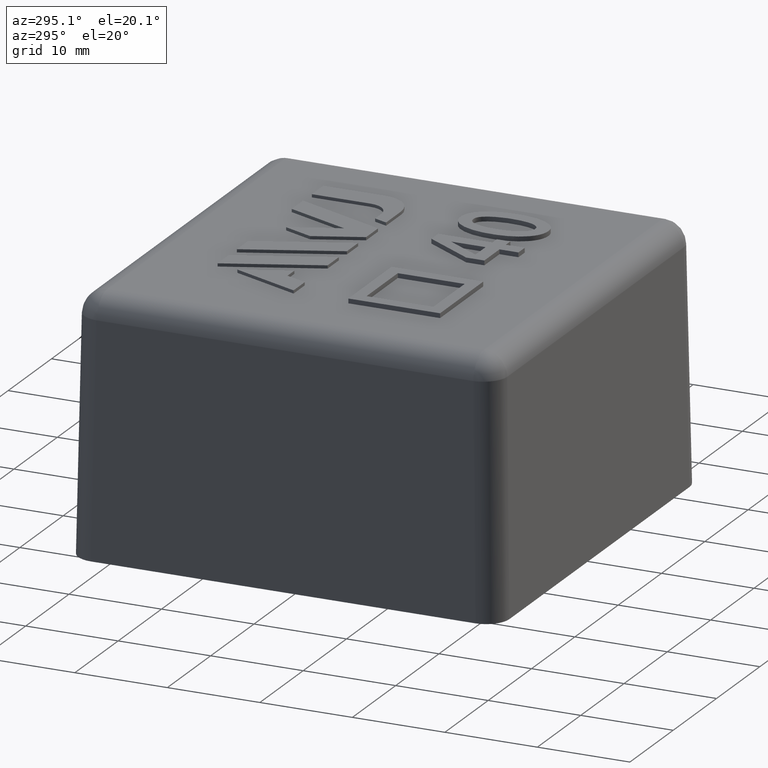
[diagram: clean part render]
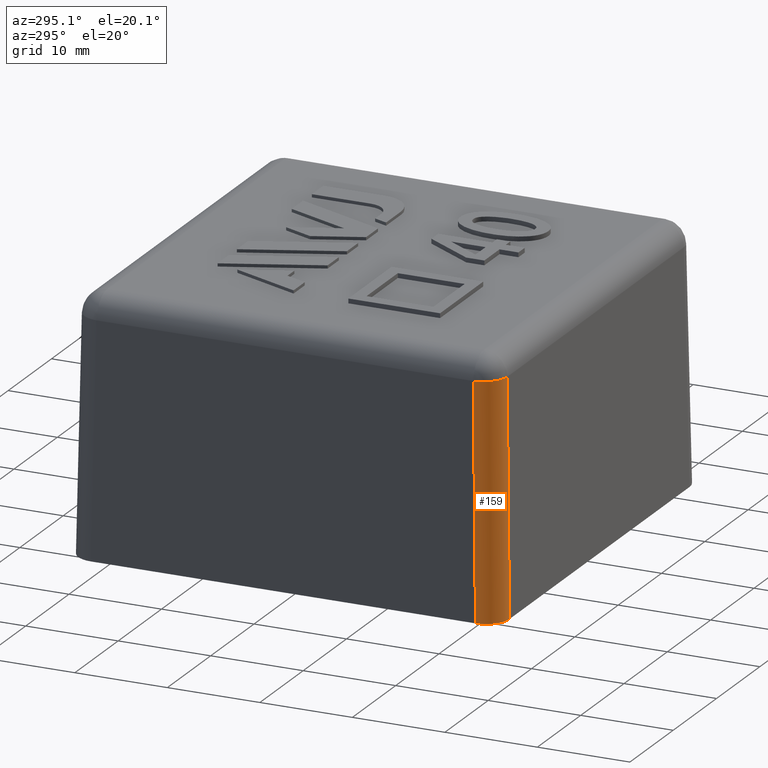
[diagram: same view with one face highlighted and labeled with its STEP entity id]
A machine part, auxiliary view. The second image highlights one B-rep face of the part: STEP entity #159.
In plain terms, the highlighted cylindrical surface (edge-blend (fillet) strip) has radius 2.5 mm, axis along (0.0174, 0.0174, 0.9997).
Its self-contained STEP definition (entity closure, byte-faithful):
#159 = ADVANCED_FACE( '', ( #344 ), #345, .T. );
#344 = FACE_OUTER_BOUND( '', #532, .T. );
#345 = CYLINDRICAL_SURFACE( '', #533, 2.50000000000000 );
#532 = EDGE_LOOP( '', ( #1214, #1215, #1216, #1217 ) );
#533 = AXIS2_PLACEMENT_3D( '', #1218, #1219, #1220 );
#1214 = ORIENTED_EDGE( '', *, *, #1329, .F. );
#1215 = ORIENTED_EDGE( '', *, *, #1429, .T. );
#1216 = ORIENTED_EDGE( '', *, *, #1276, .F. );
#1217 = ORIENTED_EDGE( '', *, *, #1308, .F. );
#1218 = CARTESIAN_POINT( '', ( -20.8011418805338, -20.8011418805338, -0.0872354614433736 ) );
#1219 = DIRECTION( '', ( 0.0174497491606827, 0.0174497491606827, 0.999695459881888 ) );
#1220 = DIRECTION( '', ( -0.999847695156391, 0.000000000000000, 0.0174524064372835 ) );
#1276 = EDGE_CURVE( '', #1526, #1527, #1528, .T. );
#1308 = EDGE_CURVE( '', #1577, #1526, #1579, .F. );
#1329 = EDGE_CURVE( '', #1614, #1577, #1616, .F. );
#1429 = EDGE_CURVE( '', #1614, #1527, #1763, .T. );
#1526 = VERTEX_POINT( '', #1936 );
#1527 = VERTEX_POINT( '', #1937 );
#1528 = LINE( '', #1938, #1939 );
#1577 = VERTEX_POINT( '', #2010 );
#1579 = ELLIPSE( '', #2013, 2.50076158222762, 2.50000000000000 );
#1614 = VERTEX_POINT( '', #2119 );
#1616 = LINE( '', #2122, #2123 );
#1763 = CIRCLE( '', #2383, 2.50000000000000 );
#1936 = CARTESIAN_POINT( '', ( -23.3000000000000, -20.8003807621090, 0.000000000000000 ) );
#1937 = CARTESIAN_POINT( '', ( -22.8628617945758, -20.3632425566848, 25.0436310160932 ) );
#1938 = CARTESIAN_POINT( '', ( -23.3007611184247, -20.8011418805338, -0.0436044453501647 ) );
#1939 = VECTOR( '', #2420, 1000.00000000000 );
#2010 = CARTESIAN_POINT( '', ( -20.8003807621090, -23.3000000000000, 0.000000000000000 ) );
#2013 = AXIS2_PLACEMENT_3D( '', #2470, #2471, #2472 );
#2119 = CARTESIAN_POINT( '', ( -20.3632425566848, -22.8628617945758, 25.0436310160932 ) );
#2122 = CARTESIAN_POINT( '', ( -20.8011418805338, -23.3007611184247, -0.0436044453501648 ) );
#2123 = VECTOR( '', #2483, 1000.00000000000 );
#2383 = AXIS2_PLACEMENT_3D( '', #2575, #2576, #2577 );
#2420 = DIRECTION( '', ( 0.0174497491606827, 0.0174497491606827, 0.999695459881887 ) );
#2470 = CARTESIAN_POINT( '', ( -20.7996191798902, -20.7996191798902, 0.000000000000000 ) );
#2471 = DIRECTION( '', ( 0.000000000000000, 0.000000000000000, 1.00000000000000 ) );
#2472 = DIRECTION( '', ( -0.707106781186548, -0.707106781186548, 0.000000000000000 ) );
#2483 = DIRECTION( '', ( 0.0174497491606827, 0.0174497491606827, 0.999695459881887 ) );
#2575 = CARTESIAN_POINT( '', ( -20.3632425566848, -20.3632425566848, 25.0000000000000 ) );
#2576 = DIRECTION( '', ( -0.0174497491606827, -0.0174497491606827, -0.999695459881888 ) );
#2577 = DIRECTION( '', ( -0.999847695156391, 0.000000000000000, 0.0174524064372835 ) );